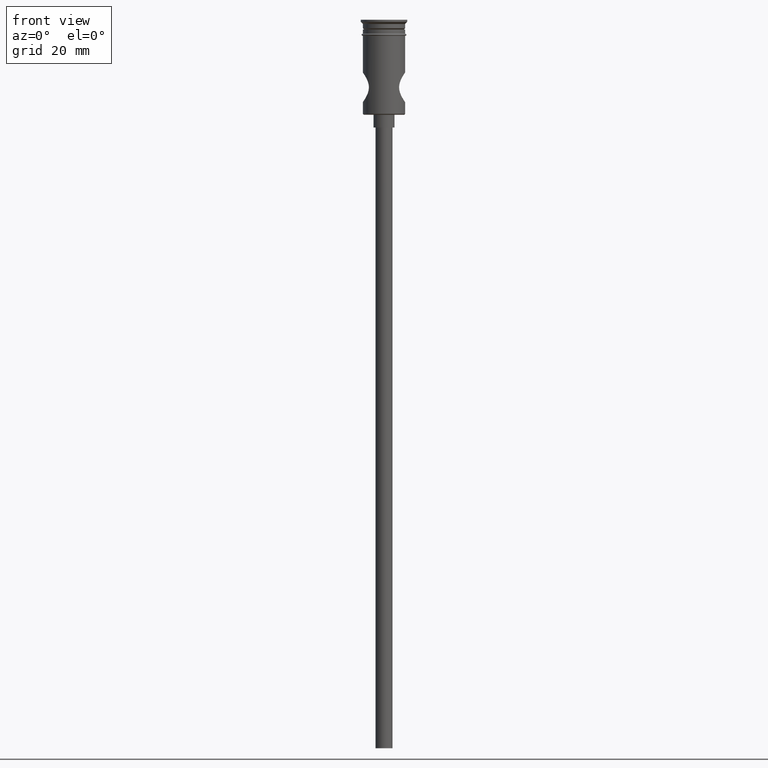
[diagram: clean part render]
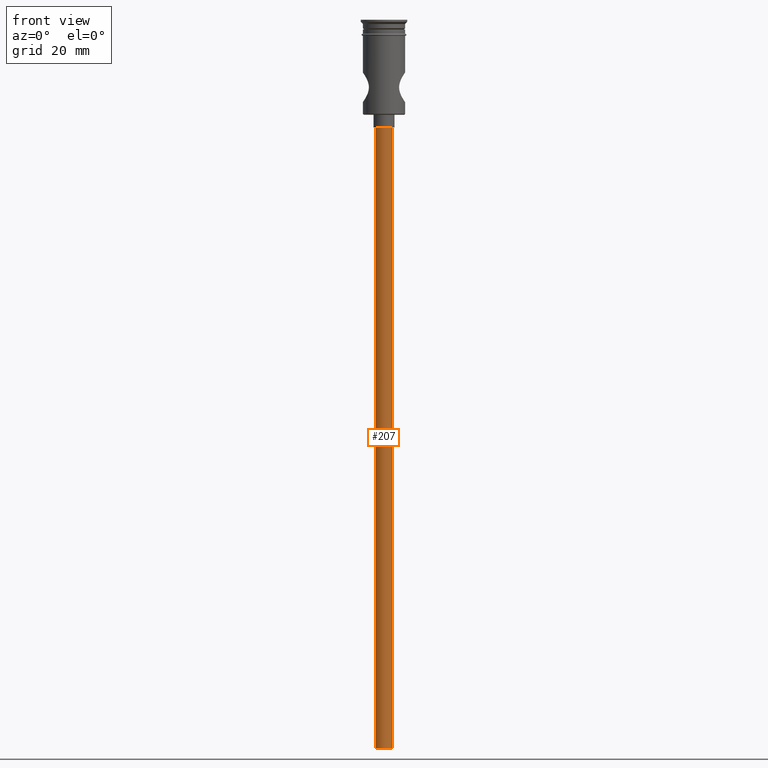
[diagram: same view with one face highlighted and labeled with its STEP entity id]
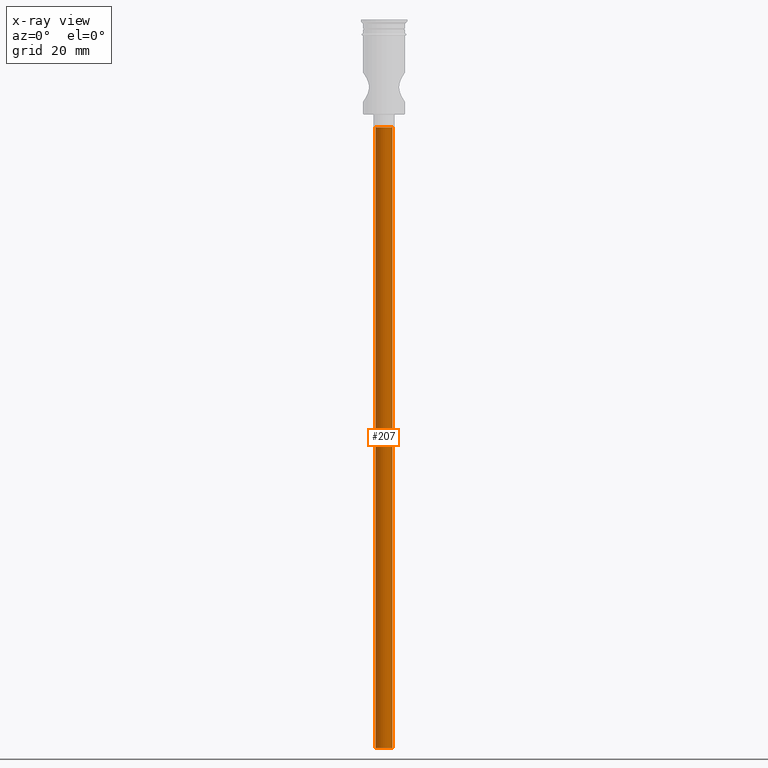
[diagram: x-ray of the same camera — body ghosted, the highlighted face saturated]
A machine part, front view. The second image highlights one B-rep face of the part: STEP entity #207.
The next image is the same camera in x-ray: the body ghosted, the highlighted face saturated — about 0% of this face is hidden behind the body in this view.
In plain terms, the highlighted cylindrical surface (edge-blend (fillet) strip) has radius 2 mm, axis along (-0, -0, 1).
Its self-contained STEP definition (entity closure, byte-faithful):
#70 = DIRECTION ( 'NONE',  ( -1.000000000000000000, 0.000000000000000000, 0.000000000000000000 ) ) ;
#101 = AXIS2_PLACEMENT_3D ( 'NONE', #1194, #197, #70 ) ;
#140 = DIRECTION ( 'NONE',  ( -0.000000000000000000, -0.000000000000000000, 1.000000000000000000 ) ) ;
#197 = DIRECTION ( 'NONE',  ( 0.000000000000000000, 0.000000000000000000, -1.000000000000000000 ) ) ;
#207 = ADVANCED_FACE ( 'NONE', ( #299 ), #1398, .T. ) ;
#225 = VECTOR ( 'NONE', #735, 1000.000000000000000 ) ;
#231 = EDGE_CURVE ( 'NONE', #536, #273, #564, .T. ) ;
#273 = VERTEX_POINT ( 'NONE', #736 ) ;
#278 = DIRECTION ( 'NONE',  ( -0.000000000000000000, -0.000000000000000000, 1.000000000000000000 ) ) ;
#286 = CARTESIAN_POINT ( 'NONE',  ( -2.000000000000000000, 2.449293598294706414E-16, -172.5000000000000000 ) ) ;
#288 = ORIENTED_EDGE ( 'NONE', *, *, #375, .F. ) ;
#292 = CARTESIAN_POINT ( 'NONE',  ( 2.000000000000000000, 0.000000000000000000, -172.5000000000000000 ) ) ;
#299 = FACE_OUTER_BOUND ( 'NONE', #1055, .T. ) ;
#315 = ORIENTED_EDGE ( 'NONE', *, *, #542, .T. ) ;
#333 = ORIENTED_EDGE ( 'NONE', *, *, #231, .T. ) ;
#375 = EDGE_CURVE ( 'NONE', #1296, #273, #463, .T. ) ;
#387 = LINE ( 'NONE', #292, #225 ) ;
#393 = DIRECTION ( 'NONE',  ( 0.000000000000000000, 0.000000000000000000, -1.000000000000000000 ) ) ;
#426 = AXIS2_PLACEMENT_3D ( 'NONE', #748, #278, #962 ) ;
#463 = LINE ( 'NONE', #787, #1044 ) ;
#536 = VERTEX_POINT ( 'NONE', #1170 ) ;
#542 = EDGE_CURVE ( 'NONE', #1289, #536, #387, .T. ) ;
#564 = CIRCLE ( 'NONE', #688, 2.000000000000000000 ) ;
#618 = DIRECTION ( 'NONE',  ( -1.000000000000000000, 0.000000000000000000, 0.000000000000000000 ) ) ;
#688 = AXIS2_PLACEMENT_3D ( 'NONE', #1425, #393, #618 ) ;
#735 = DIRECTION ( 'NONE',  ( -0.000000000000000000, -0.000000000000000000, 1.000000000000000000 ) ) ;
#736 = CARTESIAN_POINT ( 'NONE',  ( -2.000000000000000000, 2.449293598294706414E-16, -25.50000000000000000 ) ) ;
#748 = CARTESIAN_POINT ( 'NONE',  ( 0.000000000000000000, 0.000000000000000000, -172.5000000000000000 ) ) ;
#787 = CARTESIAN_POINT ( 'NONE',  ( -2.000000000000000000, 2.449293598294706414E-16, -172.5000000000000000 ) ) ;
#839 = CARTESIAN_POINT ( 'NONE',  ( 2.000000000000000000, 0.000000000000000000, -172.5000000000000000 ) ) ;
#962 = DIRECTION ( 'NONE',  ( 1.000000000000000000, 0.000000000000000000, 0.000000000000000000 ) ) ;
#1044 = VECTOR ( 'NONE', #140, 1000.000000000000000 ) ;
#1055 = EDGE_LOOP ( 'NONE', ( #288, #1251, #315, #333 ) ) ;
#1170 = CARTESIAN_POINT ( 'NONE',  ( 2.000000000000000000, 0.000000000000000000, -25.50000000000000000 ) ) ;
#1194 = CARTESIAN_POINT ( 'NONE',  ( 0.000000000000000000, 0.000000000000000000, -172.5000000000000000 ) ) ;
#1251 = ORIENTED_EDGE ( 'NONE', *, *, #1322, .F. ) ;
#1289 = VERTEX_POINT ( 'NONE', #839 ) ;
#1296 = VERTEX_POINT ( 'NONE', #286 ) ;
#1322 = EDGE_CURVE ( 'NONE', #1289, #1296, #1340, .T. ) ;
#1340 = CIRCLE ( 'NONE', #101, 2.000000000000000000 ) ;
#1398 = CYLINDRICAL_SURFACE ( 'NONE', #426, 2.000000000000000000 ) ;
#1425 = CARTESIAN_POINT ( 'NONE',  ( 0.000000000000000000, 0.000000000000000000, -25.50000000000000000 ) ) ;